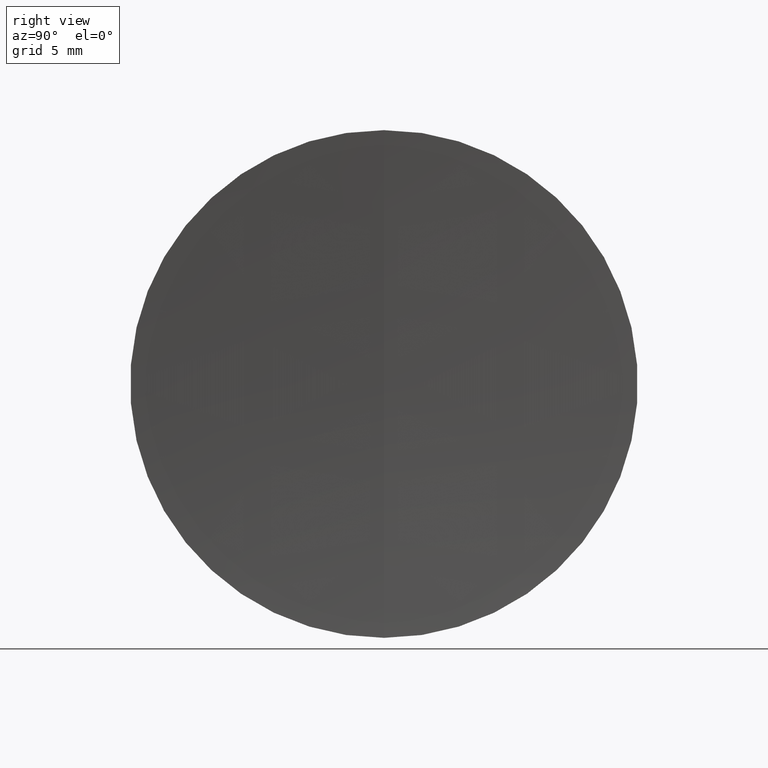
[diagram: clean part render]
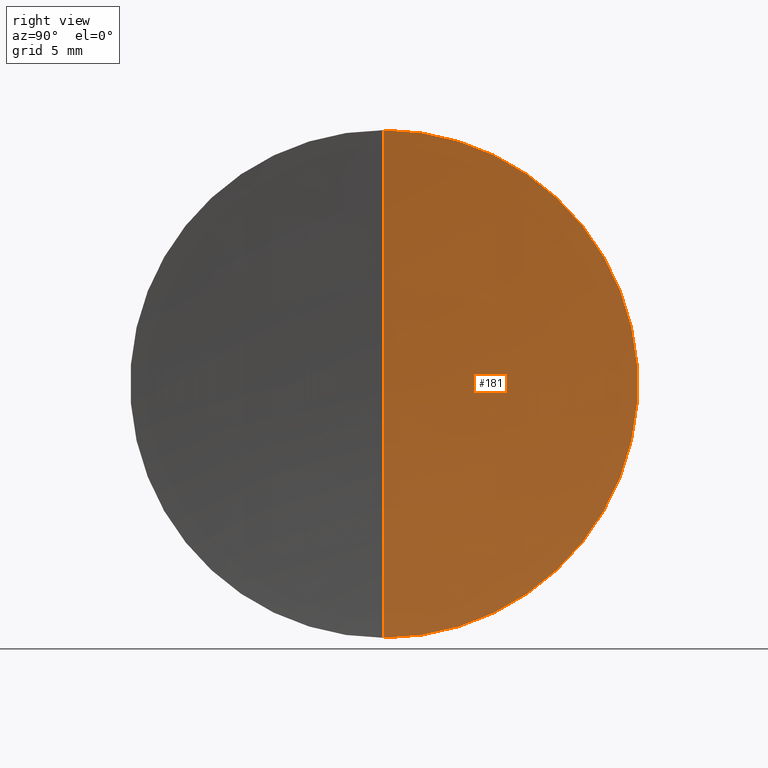
[diagram: same view with one face highlighted and labeled with its STEP entity id]
A machine part, right view. The second image highlights one B-rep face of the part: STEP entity #181.
In plain terms, the highlighted spherical surface has radius 151.36 mm.
Its self-contained STEP definition (entity closure, byte-faithful):
#1 = CARTESIAN_POINT ( 'NONE',  ( 242.3017424857897000, 0.0000000000000000000, 0.0000000000000000000 ) ) ;
#5 = EDGE_CURVE ( 'NONE', #194, #170, #230, .T. ) ;
#7 = VERTEX_POINT ( 'NONE', #73 ) ;
#8 = DIRECTION ( 'NONE',  ( 0.0000000000000000000, 1.000000000000000000, -0.0000000000000000000 ) ) ;
#25 = DIRECTION ( 'NONE',  ( 0.0000000000000000000, 0.0000000000000000000, 1.000000000000000000 ) ) ;
#40 = ORIENTED_EDGE ( 'NONE', *, *, #198, .F. ) ;
#47 = DIRECTION ( 'NONE',  ( 0.0000000000000000000, 1.224646799147353500E-016, -1.000000000000000000 ) ) ;
#61 = DIRECTION ( 'NONE',  ( -1.000000000000000000, -0.0000000000000000000, -0.0000000000000000000 ) ) ;
#73 = CARTESIAN_POINT ( 'NONE',  ( 91.47548615089289100, 0.0000000000000000000, -12.70000000000005400 ) ) ;
#74 = CARTESIAN_POINT ( 'NONE',  ( 91.47548615089287700, 0.0000000000000000000, 0.0000000000000000000 ) ) ;
#89 = EDGE_CURVE ( 'NONE', #7, #170, #325, .T. ) ;
#92 = ORIENTED_EDGE ( 'NONE', *, *, #5, .T. ) ;
#121 = CIRCLE ( 'NONE', #321, 12.70000000000005400 ) ;
#136 = CARTESIAN_POINT ( 'NONE',  ( 91.47548615089289100, -1.555301434917145500E-015, 12.70000000000005400 ) ) ;
#170 = VERTEX_POINT ( 'NONE', #242 ) ;
#175 = DIRECTION ( 'NONE',  ( 0.0000000000000000000, 0.0000000000000000000, 1.000000000000000000 ) ) ;
#177 = EDGE_LOOP ( 'NONE', ( #40, #92, #235 ) ) ;
#181 = ADVANCED_FACE ( 'NONE', ( #209 ), #197, .F. ) ;
#194 = VERTEX_POINT ( 'NONE', #136 ) ;
#197 = SPHERICAL_SURFACE ( 'NONE', #298, 151.3600000000000100 ) ;
#198 = EDGE_CURVE ( 'NONE', #194, #7, #121, .T. ) ;
#200 = CARTESIAN_POINT ( 'NONE',  ( 242.3017424857897000, 0.0000000000000000000, 0.0000000000000000000 ) ) ;
#201 = AXIS2_PLACEMENT_3D ( 'NONE', #233, #264, #47 ) ;
#207 = AXIS2_PLACEMENT_3D ( 'NONE', #200, #8, #175 ) ;
#209 = FACE_OUTER_BOUND ( 'NONE', #177, .T. ) ;
#230 = CIRCLE ( 'NONE', #201, 151.3600000000000100 ) ;
#233 = CARTESIAN_POINT ( 'NONE',  ( 242.3017424857897000, 0.0000000000000000000, 0.0000000000000000000 ) ) ;
#235 = ORIENTED_EDGE ( 'NONE', *, *, #89, .F. ) ;
#240 = DIRECTION ( 'NONE',  ( 0.0000000000000000000, 0.0000000000000000000, -1.000000000000000000 ) ) ;
#242 = CARTESIAN_POINT ( 'NONE',  ( 90.94174248578967500, 0.0000000000000000000, -9.268126975947171000E-015 ) ) ;
#264 = DIRECTION ( 'NONE',  ( 0.0000000000000000000, -1.000000000000000000, -1.224646799147353200E-016 ) ) ;
#298 = AXIS2_PLACEMENT_3D ( 'NONE', #1, #327, #240 ) ;
#321 = AXIS2_PLACEMENT_3D ( 'NONE', #74, #61, #25 ) ;
#325 = CIRCLE ( 'NONE', #207, 151.3600000000000100 ) ;
#327 = DIRECTION ( 'NONE',  ( -0.0000000000000000000, -1.000000000000000000, -0.0000000000000000000 ) ) ;